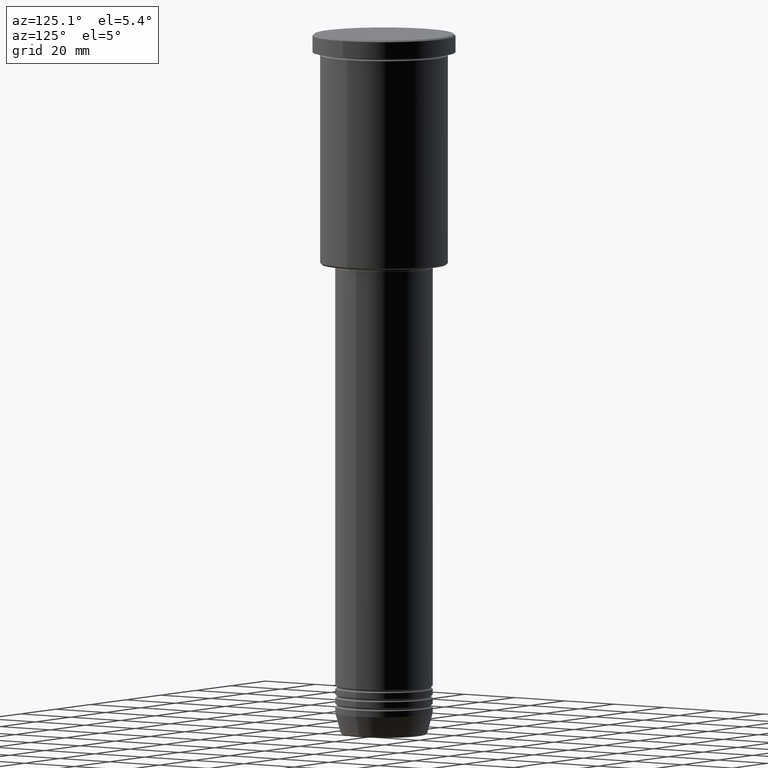
[diagram: clean part render]
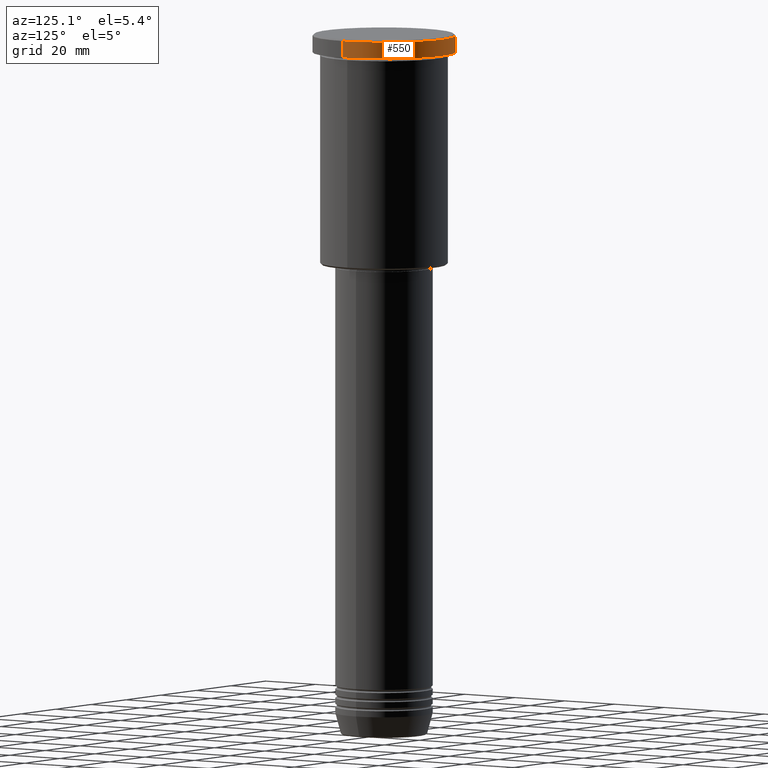
[diagram: same view with one face highlighted and labeled with its STEP entity id]
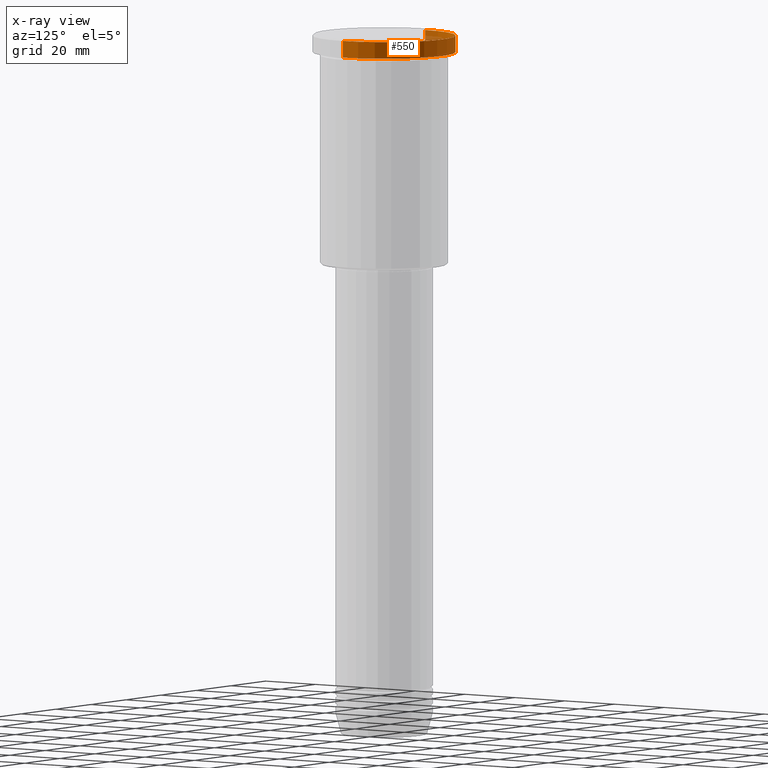
[diagram: x-ray of the same camera — body ghosted, the highlighted face saturated]
A machine part, auxiliary view. The second image highlights one B-rep face of the part: STEP entity #550.
The next image is the same camera in x-ray: the body ghosted, the highlighted face saturated — about 3% of this face is hidden behind the body in this view.
In plain terms, the highlighted cylindrical surface (partial cylindrical patch) has radius 23.5 mm, axis along (-0, -0, 1).
Its self-contained STEP definition (entity closure, byte-faithful):
#23 = FACE_OUTER_BOUND ( 'NONE', #41, .T. ) ;
#41 = EDGE_LOOP ( 'NONE', ( #827, #990, #264, #739 ) ) ;
#49 = AXIS2_PLACEMENT_3D ( 'NONE', #297, #745, #1014 ) ;
#95 = DIRECTION ( 'NONE',  ( -0.000000000000000000, -0.000000000000000000, 1.000000000000000000 ) ) ;
#108 = CARTESIAN_POINT ( 'NONE',  ( 23.50000000000000000, 0.000000000000000000, 0.000000000000000000 ) ) ;
#158 = CIRCLE ( 'NONE', #619, 23.50000000000000000 ) ;
#174 = CARTESIAN_POINT ( 'NONE',  ( -23.50000000000000000, 2.877919977996280320E-15, 0.000000000000000000 ) ) ;
#177 = VECTOR ( 'NONE', #95, 1000.000000000000000 ) ;
#181 = CARTESIAN_POINT ( 'NONE',  ( 23.50000000000000000, 0.000000000000000000, -5.999999999999994671 ) ) ;
#238 = DIRECTION ( 'NONE',  ( 0.000000000000000000, 0.000000000000000000, -1.000000000000000000 ) ) ;
#264 = ORIENTED_EDGE ( 'NONE', *, *, #667, .T. ) ;
#297 = CARTESIAN_POINT ( 'NONE',  ( 0.000000000000000000, 0.000000000000000000, 0.000000000000000000 ) ) ;
#330 = EDGE_CURVE ( 'NONE', #1168, #798, #637, .T. ) ;
#365 = EDGE_CURVE ( 'NONE', #889, #1168, #558, .T. ) ;
#366 = CARTESIAN_POINT ( 'NONE',  ( 0.000000000000000000, 0.000000000000000000, -5.999999999999994671 ) ) ;
#368 = CARTESIAN_POINT ( 'NONE',  ( 23.50000000000000000, 0.000000000000000000, -0.5000000000000837108 ) ) ;
#399 = CYLINDRICAL_SURFACE ( 'NONE', #49, 23.50000000000000000 ) ;
#438 = DIRECTION ( 'NONE',  ( -0.000000000000000000, -0.000000000000000000, 1.000000000000000000 ) ) ;
#550 = ADVANCED_FACE ( 'NONE', ( #23 ), #399, .T. ) ;
#558 = CIRCLE ( 'NONE', #976, 23.50000000000000000 ) ;
#599 = VECTOR ( 'NONE', #843, 1000.000000000000000 ) ;
#602 = EDGE_CURVE ( 'NONE', #889, #833, #926, .T. ) ;
#605 = CARTESIAN_POINT ( 'NONE',  ( -23.50000000000000000, 2.877919977996280320E-15, -5.999999999999994671 ) ) ;
#619 = AXIS2_PLACEMENT_3D ( 'NONE', #1049, #238, #1148 ) ;
#636 = CARTESIAN_POINT ( 'NONE',  ( -23.50000000000000000, 2.877919977996280320E-15, -0.5000000000000837108 ) ) ;
#637 = LINE ( 'NONE', #174, #177 ) ;
#667 = EDGE_CURVE ( 'NONE', #798, #833, #158, .T. ) ;
#739 = ORIENTED_EDGE ( 'NONE', *, *, #602, .F. ) ;
#745 = DIRECTION ( 'NONE',  ( -0.000000000000000000, -0.000000000000000000, 1.000000000000000000 ) ) ;
#798 = VERTEX_POINT ( 'NONE', #636 ) ;
#827 = ORIENTED_EDGE ( 'NONE', *, *, #365, .T. ) ;
#833 = VERTEX_POINT ( 'NONE', #368 ) ;
#843 = DIRECTION ( 'NONE',  ( -0.000000000000000000, -0.000000000000000000, 1.000000000000000000 ) ) ;
#889 = VERTEX_POINT ( 'NONE', #181 ) ;
#926 = LINE ( 'NONE', #108, #599 ) ;
#976 = AXIS2_PLACEMENT_3D ( 'NONE', #366, #438, #1079 ) ;
#990 = ORIENTED_EDGE ( 'NONE', *, *, #330, .T. ) ;
#1014 = DIRECTION ( 'NONE',  ( 1.000000000000000000, 0.000000000000000000, 0.000000000000000000 ) ) ;
#1049 = CARTESIAN_POINT ( 'NONE',  ( 0.000000000000000000, 0.000000000000000000, -0.5000000000000837108 ) ) ;
#1079 = DIRECTION ( 'NONE',  ( 1.000000000000000000, 0.000000000000000000, 0.000000000000000000 ) ) ;
#1148 = DIRECTION ( 'NONE',  ( 1.000000000000000000, 0.000000000000000000, 0.000000000000000000 ) ) ;
#1168 = VERTEX_POINT ( 'NONE', #605 ) ;